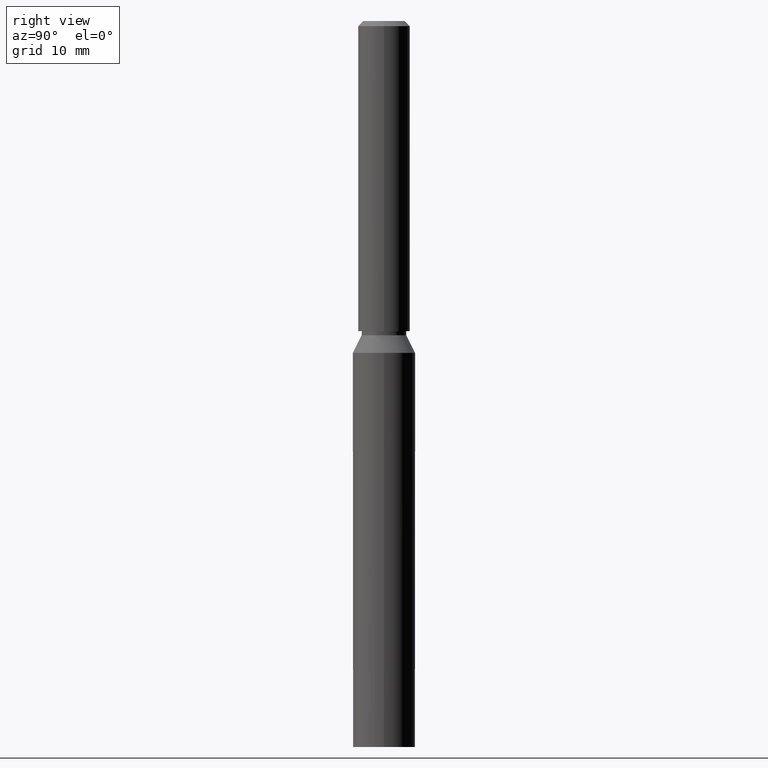
[diagram: clean part render]
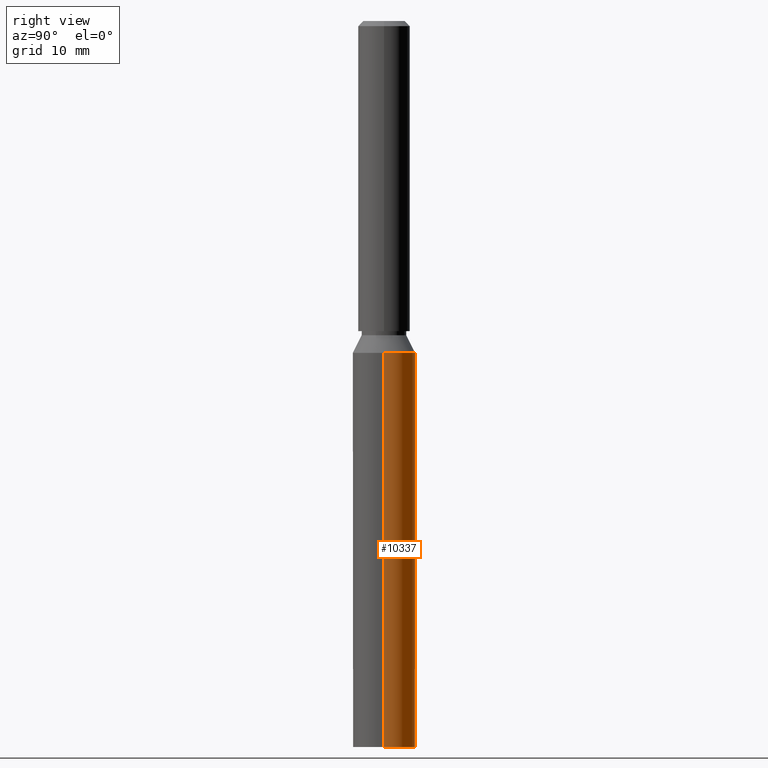
[diagram: same view with one face highlighted and labeled with its STEP entity id]
A machine part, right view. The second image highlights one B-rep face of the part: STEP entity #10337.
In plain terms, the highlighted cylindrical surface (edge-blend (fillet) strip) has radius 3 mm, axis along (-0, -0, -1).
Its self-contained STEP definition (entity closure, byte-faithful):
#135 = ORIENTED_EDGE ( 'NONE', *, *, #6058, .T. ) ;
#558 = DIRECTION ( 'NONE',  ( -0.0000000000000000000, -0.0000000000000000000, -1.000000000000000000 ) ) ;
#565 = CARTESIAN_POINT ( 'NONE',  ( 0.0000000000000000000, 0.0000000000000000000, 0.0000000000000000000 ) ) ;
#1216 = EDGE_CURVE ( 'NONE', #10972, #3734, #9667, .T. ) ;
#1421 = AXIS2_PLACEMENT_3D ( 'NONE', #565, #11393, #13617 ) ;
#1711 = AXIS2_PLACEMENT_3D ( 'NONE', #7315, #7266, #7408 ) ;
#1777 = DIRECTION ( 'NONE',  ( -0.0000000000000000000, 1.967742040464204400E-018, -1.000000000000000000 ) ) ;
#2805 = EDGE_CURVE ( 'NONE', #11327, #4088, #10504, .T. ) ;
#3284 = CARTESIAN_POINT ( 'NONE',  ( 0.0000000000000000000, 3.000000000000005800, 38.00000000000000000 ) ) ;
#3409 = EDGE_CURVE ( 'NONE', #8399, #10972, #4418, .T. ) ;
#3484 = CYLINDRICAL_SURFACE ( 'NONE', #1711, 3.000000000000000400 ) ;
#3734 = VERTEX_POINT ( 'NONE', #11551 ) ;
#4059 = DIRECTION ( 'NONE',  ( -0.0000000000000000000, 1.967742040464204400E-018, -1.000000000000000000 ) ) ;
#4088 = VERTEX_POINT ( 'NONE', #13517 ) ;
#4418 = CIRCLE ( 'NONE', #10297, 3.000000000000005800 ) ;
#5692 = CARTESIAN_POINT ( 'NONE',  ( -3.000000000000005800, 1.324076836766224600E-031, 38.00000000000000000 ) ) ;
#5922 = DIRECTION ( 'NONE',  ( 0.0000000000000000000, 1.000000000000000000, 0.0000000000000000000 ) ) ;
#6031 = CIRCLE ( 'NONE', #1421, 3.000000000000000400 ) ;
#6058 = EDGE_CURVE ( 'NONE', #3734, #4088, #6031, .T. ) ;
#6265 = CARTESIAN_POINT ( 'NONE',  ( 3.000000000000005800, 3.673940397442067800E-016, 38.00000000000000000 ) ) ;
#6341 = FACE_OUTER_BOUND ( 'NONE', #9880, .T. ) ;
#6444 = EDGE_CURVE ( 'NONE', #11327, #8399, #7079, .T. ) ;
#7079 = CIRCLE ( 'NONE', #9596, 3.000000000000005800 ) ;
#7101 = CARTESIAN_POINT ( 'NONE',  ( 3.000000000000000400, 3.673940397442060400E-016, 40.00000000000000000 ) ) ;
#7130 = VECTOR ( 'NONE', #558, 1000.000000000000000 ) ;
#7165 = CARTESIAN_POINT ( 'NONE',  ( -3.000000000000000400, 0.0000000000000000000, 40.00000000000000000 ) ) ;
#7266 = DIRECTION ( 'NONE',  ( -0.0000000000000000000, -0.0000000000000000000, -1.000000000000000000 ) ) ;
#7315 = CARTESIAN_POINT ( 'NONE',  ( 0.0000000000000000000, 0.0000000000000000000, 40.00000000000000000 ) ) ;
#7408 = DIRECTION ( 'NONE',  ( -1.000000000000000000, 0.0000000000000000000, 0.0000000000000000000 ) ) ;
#8256 = DIRECTION ( 'NONE',  ( -0.0000000000000000000, -0.0000000000000000000, -1.000000000000000000 ) ) ;
#8277 = CARTESIAN_POINT ( 'NONE',  ( 0.0000000000000000000, -7.477419753763976000E-017, 38.00000000000000000 ) ) ;
#8399 = VERTEX_POINT ( 'NONE', #3284 ) ;
#8558 = ORIENTED_EDGE ( 'NONE', *, *, #1216, .T. ) ;
#8626 = VECTOR ( 'NONE', #8256, 1000.000000000000000 ) ;
#9596 = AXIS2_PLACEMENT_3D ( 'NONE', #8277, #1777, #5922 ) ;
#9667 = LINE ( 'NONE', #7101, #7130 ) ;
#9880 = EDGE_LOOP ( 'NONE', ( #12621, #10509, #8558, #135, #13376 ) ) ;
#10297 = AXIS2_PLACEMENT_3D ( 'NONE', #10537, #4059, #11650 ) ;
#10337 = ADVANCED_FACE ( 'NONE', ( #6341 ), #3484, .T. ) ;
#10504 = LINE ( 'NONE', #7165, #8626 ) ;
#10509 = ORIENTED_EDGE ( 'NONE', *, *, #3409, .T. ) ;
#10537 = CARTESIAN_POINT ( 'NONE',  ( 0.0000000000000000000, -7.477419753763976000E-017, 38.00000000000000000 ) ) ;
#10972 = VERTEX_POINT ( 'NONE', #6265 ) ;
#11327 = VERTEX_POINT ( 'NONE', #5692 ) ;
#11393 = DIRECTION ( 'NONE',  ( 0.0000000000000000000, 0.0000000000000000000, 1.000000000000000000 ) ) ;
#11551 = CARTESIAN_POINT ( 'NONE',  ( 3.000000000000000400, 3.673940397442060400E-016, 0.0000000000000000000 ) ) ;
#11650 = DIRECTION ( 'NONE',  ( 0.0000000000000000000, 1.000000000000000000, 0.0000000000000000000 ) ) ;
#12621 = ORIENTED_EDGE ( 'NONE', *, *, #6444, .T. ) ;
#13376 = ORIENTED_EDGE ( 'NONE', *, *, #2805, .F. ) ;
#13517 = CARTESIAN_POINT ( 'NONE',  ( -3.000000000000000400, 0.0000000000000000000, 0.0000000000000000000 ) ) ;
#13617 = DIRECTION ( 'NONE',  ( 1.000000000000000000, 0.0000000000000000000, 0.0000000000000000000 ) ) ;